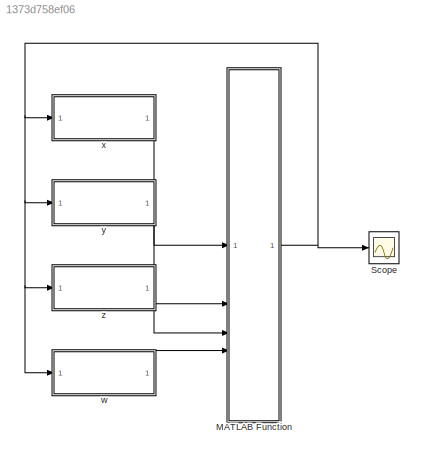
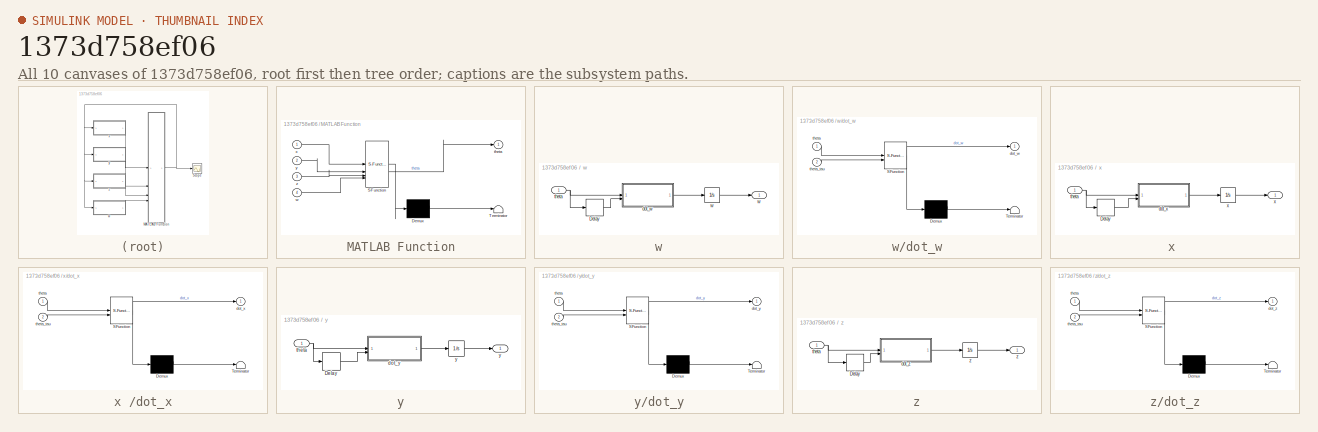
[diagram: thumbnail index - all 10 canvases of the model, root first then tree order]
MODEL slx_1373d758ef06
KIND model
CONFIG AbsTol = auto
CONFIG EnableMultiTasking = off
CONFIG FixedStep = step_T
CONFIG InitFcn = run('pam_test')
CONFIG MaxStep = auto
CONFIG MinStep = auto
CONFIG RelTol = 1e-3
CONFIG SampleTimeConstraint = Unconstrained
CONFIG SolverName = FixedStepAuto
CONFIG StartTime = 0.0
CONFIG StopTime = 10000
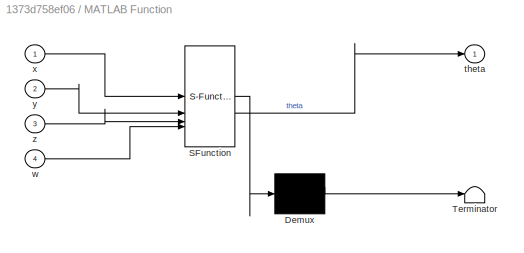
BLOCK [SubSystem] MATLAB Function
  ErrorFcn = Stateflow.Translate.translate
  PermitHierarchicalResolution = ExplicitOnly
  SFBlockType = MATLAB Function
  TreatAsAtomicUnit = on
BLOCK [Demux] MATLAB Function/ Demux 
  Outputs = 1
BLOCK [S-Function] MATLAB Function/ SFunction 
  EnableBusSupport = on
  FunctionName = sf_sfun
  PortCounts = [4 2]
  SFcnIsStateOwnerBlock = off
  SFunctionDeploymentMode = off
  Tag = Stateflow S-Function 5
BLOCK [Terminator] MATLAB Function/ Terminator 
BLOCK [Outport] MATLAB Function/theta
BLOCK [Inport] MATLAB Function/w
  Port = 4
BLOCK [Inport] MATLAB Function/x
BLOCK [Inport] MATLAB Function/y
  Port = 2
BLOCK [Inport] MATLAB Function/z
  Port = 3
BLOCK [Scope] Scope
  Floating = off
  NumInputPorts = 1
  ScopeSpecificationString = Simulink.scopes.TimeScopeBlockCfg('CurrentConfiguration', extmgr.ConfigurationSet(extmgr.Configuration('Core','General UI',true),extmgr.Configuration('Core','Source UI',true),extmgr.Configuration('Sources','WiredSimulink',true),extmgr.Configuration('Visuals','Time Domain',true,'SerializedDisplays',{struct('MinYLimReal','-1.26532','MaxYLimReal','1.32347','YLabelReal','','MinYLimMag','0.00000','MaxY...<+1493ch>
BLOCK [SubSystem] w
BLOCK [Delay] w/Delay
  DelayLength = tau/step_T
  InitialCondition = 0
  InputPortMap = u0
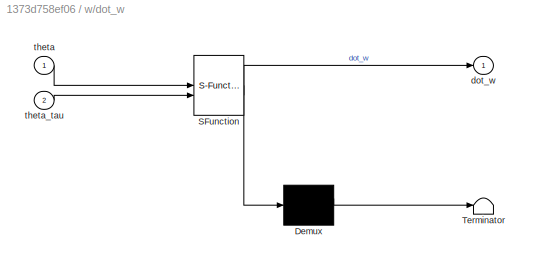
BLOCK [SubSystem] w/dot_w
  ErrorFcn = Stateflow.Translate.translate
  PermitHierarchicalResolution = ExplicitOnly
  SFBlockType = MATLAB Function
  TreatAsAtomicUnit = on
BLOCK [Demux] w/dot_w/ Demux 
  Outputs = 1
BLOCK [S-Function] w/dot_w/ SFunction 
  EnableBusSupport = on
  FunctionName = sf_sfun
  Parameters = pam
  PortCounts = [2 2]
  SFcnIsStateOwnerBlock = off
  SFunctionDeploymentMode = off
  Tag = Stateflow S-Function 4
BLOCK [Terminator] w/dot_w/ Terminator 
BLOCK [Outport] w/dot_w/dot_w
BLOCK [Inport] w/dot_w/theta
BLOCK [Inport] w/dot_w/theta_tau
  Port = 2
BLOCK [Inport] w/theta
BLOCK [Integrator] w/w
  InitialCondition = w_0
BLOCK [Outport] w/w 
BLOCK [SubSystem] x 
BLOCK [Delay] x /Delay
  DelayLength = tau/step_T
  InitialCondition = 0
  InputPortMap = u0
BLOCK [SubSystem] x /dot_x
  ErrorFcn = Stateflow.Translate.translate
  PermitHierarchicalResolution = ExplicitOnly
  SFBlockType = MATLAB Function
  TreatAsAtomicUnit = on
BLOCK [Demux] x /dot_x/ Demux 
  Outputs = 1
BLOCK [S-Function] x /dot_x/ SFunction 
  EnableBusSupport = on
  FunctionName = sf_sfun
  Parameters = pam
  PortCounts = [2 2]
  SFcnIsStateOwnerBlock = off
  SFunctionDeploymentMode = off
  Tag = Stateflow S-Function 2
BLOCK [Terminator] x /dot_x/ Terminator 
BLOCK [Outport] x /dot_x/dot_x
BLOCK [Inport] x /dot_x/theta
BLOCK [Inport] x /dot_x/theta_tau
  Port = 2
BLOCK [Inport] x /theta
BLOCK [Integrator] x /x
  InitialCondition = x_0
BLOCK [Outport] x /x 
BLOCK [SubSystem] y
BLOCK [Delay] y/Delay
  DelayLength = tau/step_T
  InitialCondition = 0
  InputPortMap = u0
BLOCK [SubSystem] y/dot_y
  ErrorFcn = Stateflow.Translate.translate
  PermitHierarchicalResolution = ExplicitOnly
  SFBlockType = MATLAB Function
  TreatAsAtomicUnit = on
BLOCK [Demux] y/dot_y/ Demux 
  Outputs = 1
BLOCK [S-Function] y/dot_y/ SFunction 
  EnableBusSupport = on
  FunctionName = sf_sfun
  Parameters = pam
  PortCounts = [2 2]
  SFcnIsStateOwnerBlock = off
  SFunctionDeploymentMode = off
  Tag = Stateflow S-Function 1
BLOCK [Terminator] y/dot_y/ Terminator 
BLOCK [Outport] y/dot_y/dot_y
BLOCK [Inport] y/dot_y/theta
BLOCK [Inport] y/dot_y/theta_tau
  Port = 2
BLOCK [Inport] y/theta
BLOCK [Integrator] y/y
  InitialCondition = y_0
BLOCK [Outport] y/y 
BLOCK [SubSystem] z
BLOCK [Delay] z/Delay
  DelayLength = tau/step_T
  InitialCondition = 0
  InputPortMap = u0
BLOCK [SubSystem] z/dot_z
  ErrorFcn = Stateflow.Translate.translate
  PermitHierarchicalResolution = ExplicitOnly
  SFBlockType = MATLAB Function
  TreatAsAtomicUnit = on
BLOCK [Demux] z/dot_z/ Demux 
  Outputs = 1
BLOCK [S-Function] z/dot_z/ SFunction 
  EnableBusSupport = on
  FunctionName = sf_sfun
  Parameters = pam
  PortCounts = [2 2]
  SFcnIsStateOwnerBlock = off
  SFunctionDeploymentMode = off
  Tag = Stateflow S-Function 3
BLOCK [Terminator] z/dot_z/ Terminator 
BLOCK [Outport] z/dot_z/dot_z
BLOCK [Inport] z/dot_z/theta
BLOCK [Inport] z/dot_z/theta_tau
  Port = 2
BLOCK [Inport] z/theta
BLOCK [Integrator] z/z
  InitialCondition = z_0
BLOCK [Outport] z/z 
NET MATLAB Function:1 -> Scope:1, w:1, x :1, y:1, z:1
LINE w/Delay:1 -> w/dot_w:2
LINE w/dot_w:1 -> w/w:1
NET w/theta:1 -> w/Delay:1, w/dot_w:1
LINE w/w:1 -> w/w :1
LINE w:1 -> MATLAB Function:4
LINE x /Delay:1 -> x /dot_x:2
LINE x /dot_x:1 -> x /x:1
NET x /theta:1 -> x /Delay:1, x /dot_x:1
LINE x /x:1 -> x /x :1
LINE x :1 -> MATLAB Function:1
LINE y/Delay:1 -> y/dot_y:2
LINE y/dot_y:1 -> y/y:1
NET y/theta:1 -> y/Delay:1, y/dot_y:1
LINE y/y:1 -> y/y :1
LINE y:1 -> MATLAB Function:2
LINE z/Delay:1 -> z/dot_z:2
LINE z/dot_z:1 -> z/z:1
NET z/theta:1 -> z/Delay:1, z/dot_z:1
LINE z/z:1 -> z/z :1
LINE z:1 -> MATLAB Function:3
note: NET lines group one-source signal fan-out (src -> all destinations, sorted); 1:1 wires keep LINE
CHART y/dot_y states=1 transitions=1
  STATE_LABEL 'eML_blk_kernel()'
  STATE_LABEL 'SCRIPT:\nfunction dot_y = fcn(theta,theta_tau,pam)\n\nx = theta(1);\ny = theta(2);\nz = theta(3);\nw = theta(4);\n\nx_tau = theta_tau(1);\ny_tau = theta_tau(2);\nz_tau = theta_tau(3);\nw_tau = theta_tau(4);\n\ndot_y =- pam.b_1*y-pam.b_2+pam.b_3*x*(pam.N-(x_tau-z_tau));\n'
CHART x /dot_x states=1 transitions=1
  STATE_LABEL 'eML_blk_kernel()'
  STATE_LABEL 'SCRIPT:\nfunction dot_x = fcn(theta,theta_tau,pam)\n\nx = theta(1);\ny = theta(2);\nz = theta(3);\nw = theta(4);\n\nx_tau = theta_tau(1);\ny_tau = theta_tau(2);\nz_tau = theta_tau(3);\nw_tau = theta_tau(4);\n\ndot_x = pam.a_1*x*(1-x_tau/pam.M)-pam.a_2*(y_tau+z_tau)-pam.d_3*w_tau;\n'
CHART z/dot_z states=1 transitions=1
  STATE_LABEL 'eML_blk_kernel()'
  STATE_LABEL 'SCRIPT:\nfunction dot_z = fcn(theta,theta_tau,pam)\n\nx = theta(1);\ny = theta(2);\nz = theta(3);\nw = theta(4);\n\nx_tau = theta_tau(1);\ny_tau = theta_tau(2);\nz_tau = theta_tau(3);\nw_tau = theta_tau(4);\n\ndot_z =pam.c_1*z*(pam.c_2*x_tau-pam.c_3);\n'
CHART w/dot_w states=1 transitions=1
  STATE_LABEL 'eML_blk_kernel()'
  STATE_LABEL 'SCRIPT:\nfunction dot_w = fcn(theta,theta_tau,pam)\n\nx = theta(1);\ny = theta(2);\nz = theta(3);\nw = theta(4);\n\nx_tau = theta_tau(1);\ny_tau = theta_tau(2);\nz_tau = theta_tau(3);\nw_tau = theta_tau(4);\n\ndot_w = pam.d_1*x-pam.d_2*w+pam.K*(w-w_tau);\n'
CHART MATLAB Function states=1 transitions=1
  STATE_LABEL 'eML_blk_kernel()'
  STATE_LABEL 'SCRIPT:\nfunction theta = fcn(x,y,z,w)\n\ntheta = [x;y;z;w];\n'
CHART  states=0 transitions=0
CHART  states=0 transitions=0
CHART  states=0 transitions=0
CHART  states=0 transitions=0
CHART  states=0 transitions=0
